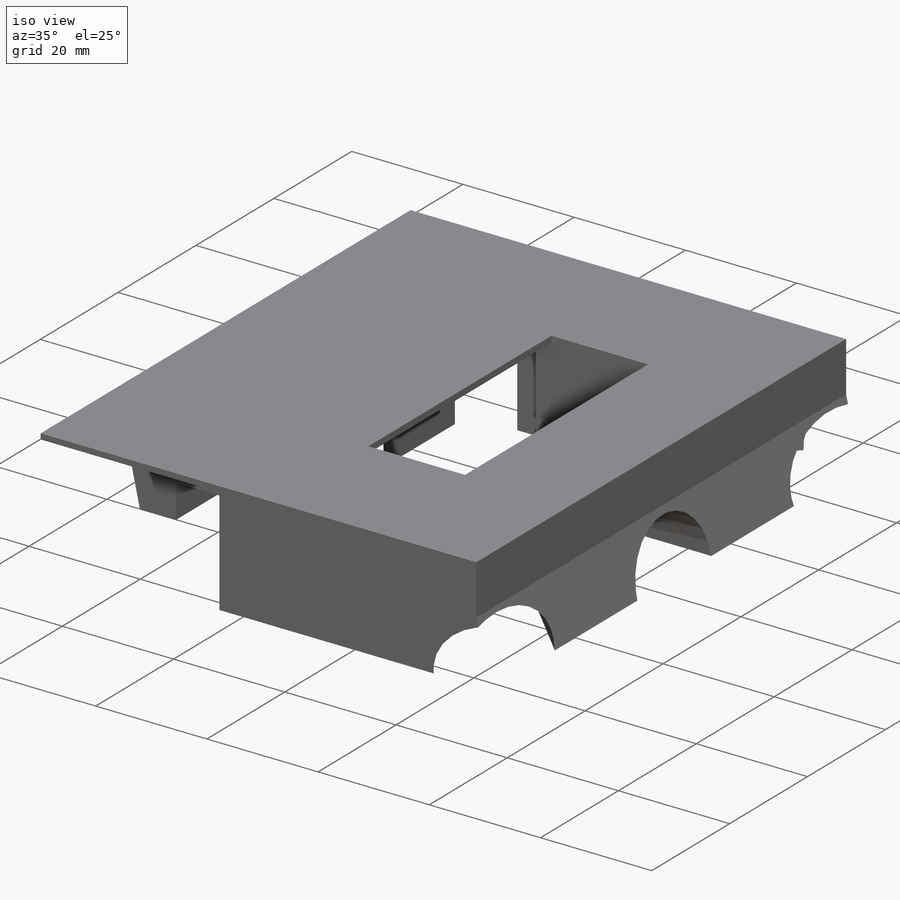
[diagram: iso view]
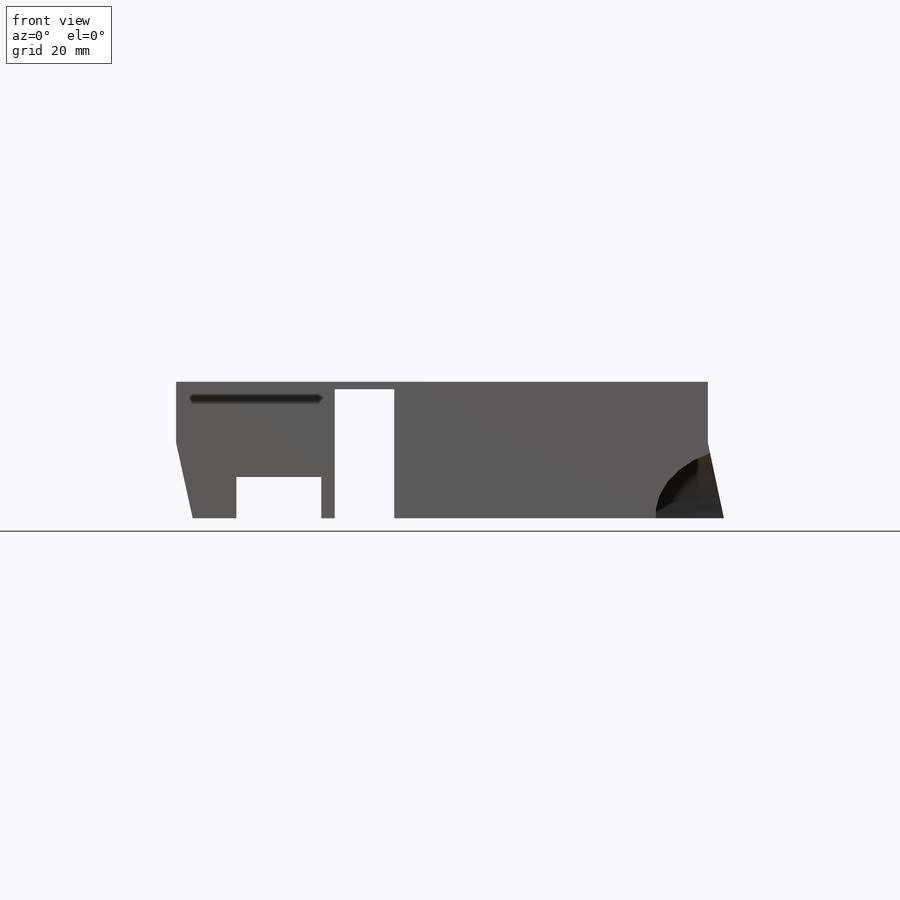
[diagram: front view]
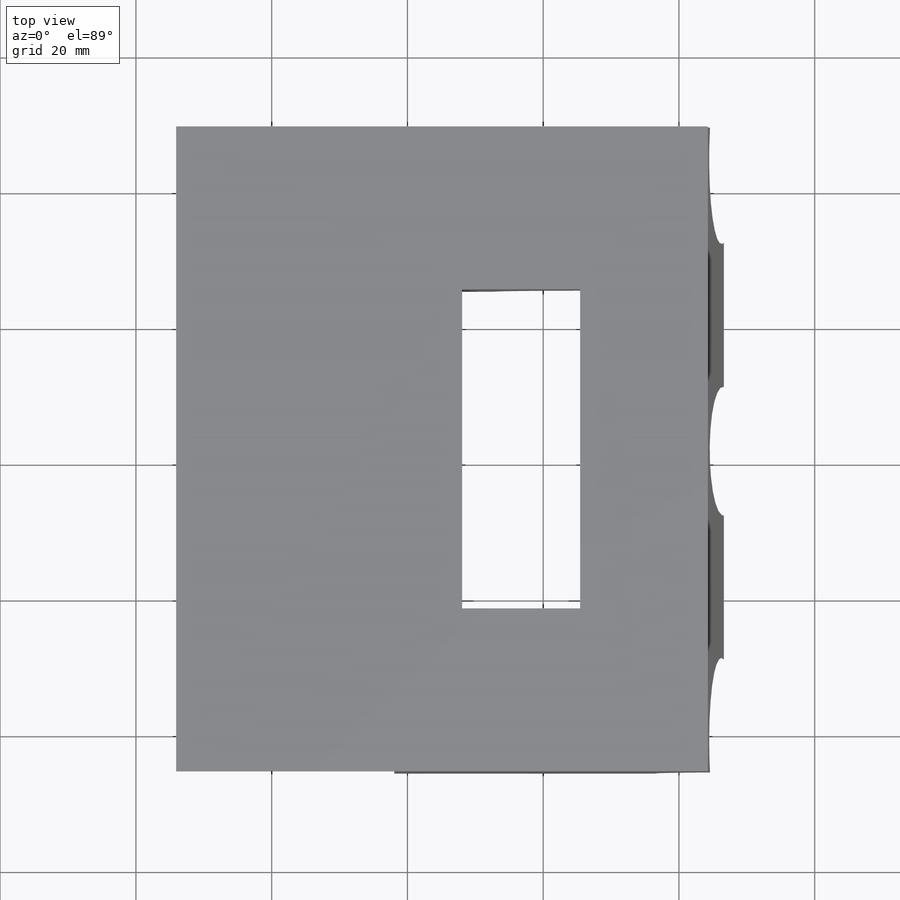
[diagram: top view]
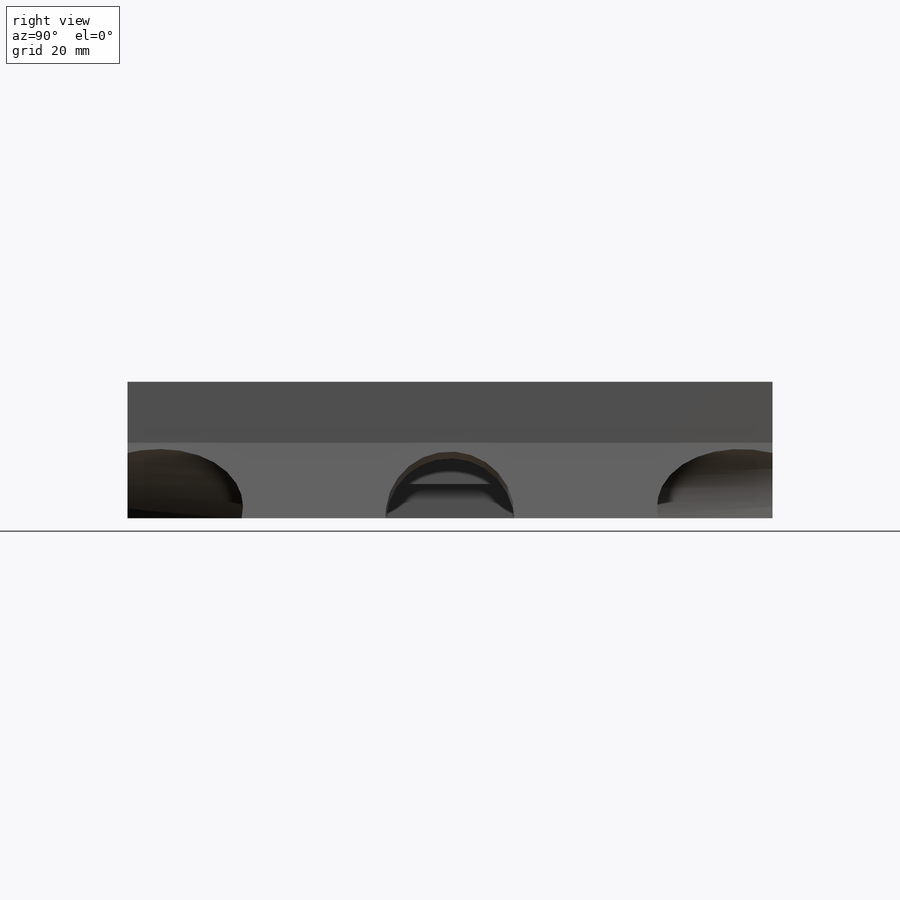
[diagram: right view]
SOLIDWORKS PART (.sldprt)
format: sldprt  version: not decoded by parser v0  size: 676,864 bytes
history: native  units: mm
features: sketch x34, cut_extrude x27, extrude x7, material x1, fillet x1 (+12 scaffold rows collapsed)
feature tree (82):
  scaffold x12  (default folders/planes/origin — collapsed)
  material  "Material <not specified>"
  sketch  "Sketch1"  dims[D1=95.0mm D2=95.0mm]
  extrude  "Boss-Extrude1"  Depth=50mm
  sketch  "Sketch2"  dims[D1=2.7mm]
  cut_extrude  "Cut-Extrude1"  Depth=100mm
  sketch  "Sketch3"  dims[D3=19.0mm D1=47.5mm D2=15.5mm]
  cut_extrude  "Cut-Extrude2"  Depth=45mm
  sketch  "Sketch5"  dims[D1=20.0mm D2=20.0mm D3=20.0mm D4=20.0mm]
  cut_extrude  "Cut-Extrude4"  Depth=45mm
  sketch  "Sketch6"
  cut_extrude  "Cut-Extrude5"  Depth=45mm
  sketch  "Sketch7"  dims[D1=2.7mm]
  cut_extrude  "Cut-Extrude6"  Depth=45mm
  sketch  "Sketch8"  dims[D1=2.7mm]
  cut_extrude  "Cut-Extrude7"  Depth=45mm
  sketch  "Sketch9"  dims[c1.D1=10.0mm c1.D2=~13.838482mm c2.D1=~21.268447mm c2.D2=20.0mm c3.D1=15.5mm]
  cut_extrude  "Cut-Extrude9"  Depth=45mm
  sketch  "Sketch11"  dims[D1=20.0mm D2=15.5mm]
  cut_extrude  "Cut-Extrude10"  Depth=45mm
  sketch  "Sketch12"
  extrude  "Boss-Extrude2"  Depth=45mm
  sketch  "Sketch13"  dims[D1=10.0mm D2=3.0mm D3=10.0mm]
  cut_extrude  "Cut-Extrude11"  Depth=100mm
  sketch  "Sketch14"
  cut_extrude  "Cut-Extrude12"  Depth=100mm
  sketch  "Sketch15"
  cut_extrude  "Cut-Extrude13"  Depth=100mm
  sketch  "Sketch16"
  cut_extrude  "Cut-Extrude14"  Depth=100mm
  fillet  "Fillet2"  Radius=4mm
  sketch  "Sketch17"  dims[D1=34.0mm D2=34.0mm]
  cut_extrude  "Cut-Extrude16"  Depth=22mm
  sketch  "Sketch19"  dims[D1=34.0mm D2=34.0mm]
  cut_extrude  "Cut-Extrude17"  Depth=22mm
  sketch  "Sketch20"  dims[D1=12.5mm D2=16.5mm D3=4.0mm D4=10.75mm D5=10.75mm]
  cut_extrude  "Cut-Extrude18"  Depth=60mm
  sketch  "Sketch21"  dims[D1=7.5mm]
  cut_extrude  "Cut-Extrude19"  Depth=60mm
  sketch  "Sketch22"
  cut_extrude  "Cut-Extrude21"  Depth=100mm
  sketch  "Sketch23"  dims[c1.D1=~2.288058mm c1.D3=~1.809648mm c1.D4=~1.460375mm c1.D6=~0.565223mm c2.D1=10.0mm c2.D2=10.0mm c2.D3=10.0mm c2.D4=15.0mm c2.D5=10.0mm c2.D6=15.0mm c2.D7=10.0mm c2.D8=10.0mm]
  cut_extrude  "Cut-Extrude24"  Depth=909mm
  sketch  "Sketch25"  dims[c1.D1=~1.59415mm c1.D3=~1.686128mm c2.D1=10.0mm c2.D2=3.0mm c2.D3=10.0mm]
  cut_extrude  "Cut-Extrude25"  Depth=789mm
  sketch  "Sketch27"  dims[D1=2.0mm D2=2.0mm D3=2.0mm D4=0.0mm]
  cut_extrude  "Cut-Extrude27"  Depth=9mm
  sketch  "Sketch28"  dims[D1=20.0mm D2=15.5mm D3=15.5mm]
  cut_extrude  "Cut-Extrude28"  Depth=5mm
  sketch  "Sketch29"
  cut_extrude  "Cut-Extrude29"  Depth=447mm
  sketch  "Sketch30"  dims[D1=1.5mm]
  cut_extrude  "Cut-Extrude30"  Depth=447mm
  sketch  "Sketch31"
  cut_extrude  "Cut-Extrude31"  Depth=447mm
  sketch  "Sketch32"  dims[D1=0.0mm D2=10.0mm]
  cut_extrude  "Cut-Extrude32"  Depth=90mm
  sketch  "Sketch35"
  extrude  "Boss-Extrude4"  Depth=9mm
  sketch  "Sketch37"
  cut_extrude  "Cut-Extrude34"  Depth=9mm
  sketch  "Sketch38"  dims[D1=3.5mm D2=58.0mm D3=3.5mm D4=0.0mm D5=16.0mm]
  cut_extrude  "Cut-Extrude36"  Depth=19mm
  sketch  "Sketch40"  dims[D1=0.0mm]
  extrude  "Boss-Extrude5"  Depth=48mm
  sketch  "Sketch41"
  extrude  "Boss-Extrude6"  Depth=10mm
  sketch  "Sketch42"  dims[D1=1.0mm]
  extrude  "Boss-Extrude7"  Depth=22mm
  sketch  "Sketch43"
  extrude  "Boss-Extrude8"  Depth=22mm
decode coverage: 57 of 69 modeling features carry decoded parameters
note: ~ marks probable driven/reference dimensions
note: suppression state not decoded; provenance and decode notes live in map.json
